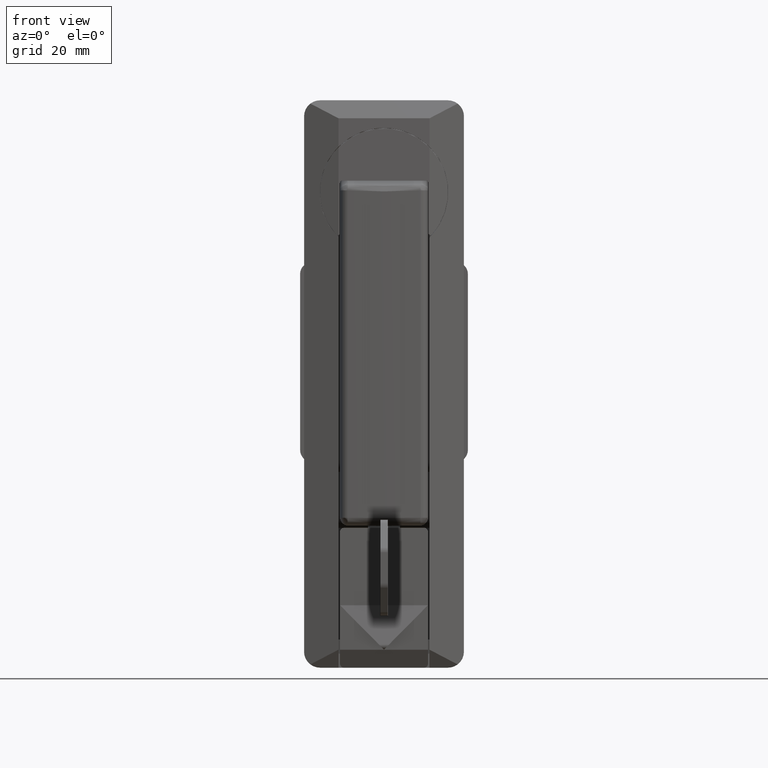
[diagram: clean part render]
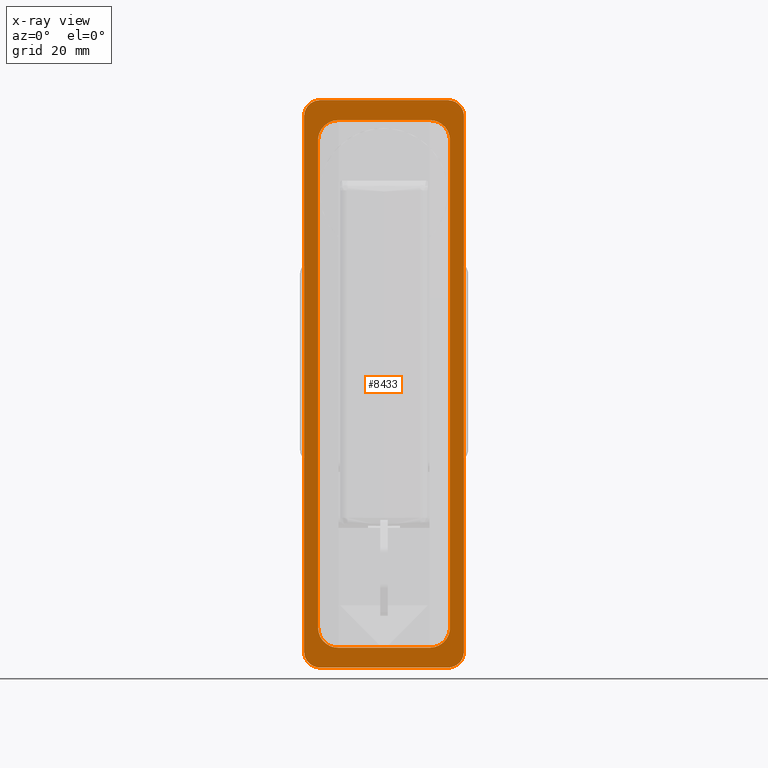
[diagram: x-ray — body ghosted, one internal face saturated and labeled with its STEP entity id]
A machine part, front view, then the same camera in x-ray: the body is ghosted and one INTERNAL B-rep face — a face not visible from any outside direction — is saturated and labeled: STEP entity #8433.
In plain terms, the highlighted face is a freeform B-spline surface patch.
Its self-contained STEP definition (entity closure, byte-faithful):
#6839=CARTESIAN_POINT('',(0.0,16.499970000000001,-109.000330000000010));
#6840=VERTEX_POINT('',#6839);
#6849=CARTESIAN_POINT('',(0.0,11.499969999999999,-114.000330000000010));
#6850=VERTEX_POINT('',#6849);
#6856=CARTESIAN_POINT('',(0.0,16.499970000000001,-109.000330000000010));
#6857=CARTESIAN_POINT('',(0.0,16.500699463817689,-109.654962103415200));
#6858=CARTESIAN_POINT('',(0.0,16.304331631190031,-110.636139651273400));
#6859=CARTESIAN_POINT('',(0.0,15.684067110006140,-111.796069577348310));
#6860=CARTESIAN_POINT('',(0.0,14.928059064070521,-112.717703569332300));
#6861=CARTESIAN_POINT('',(0.0,13.853667398936160,-113.494376092367900));
#6862=CARTESIAN_POINT('',(0.0,12.604424343246130,-113.923822309606610));
#6863=CARTESIAN_POINT('',(0.0,11.827202880747270,-114.000357110822900));
#6864=CARTESIAN_POINT('',(0.0,11.499969999999999,-114.000330000000010));
#6865=B_SPLINE_CURVE_WITH_KNOTS('',3,(#6856,#6857,#6858,#6859,#6860,#6861,#6862,#6863,#6864),.UNSPECIFIED.,.F.,.U.,(4,1,1,1,1,1,4),(0.000000136025099,1.963544904976822,2.945358204367086,3.927089428850185,5.522458763391846,6.872448776485430,7.854178721675453),.UNSPECIFIED.);
#6866=EDGE_CURVE('',#6840,#6850,#6865,.T.);
#6887=CARTESIAN_POINT('',(0.0,-16.499980000000001,-109.000330000000010));
#6888=VERTEX_POINT('',#6887);
#6894=CARTESIAN_POINT('',(0.0,-11.499980000000001,-114.000330000000010));
#6895=VERTEX_POINT('',#6894);
#6896=CARTESIAN_POINT('',(0.0,-11.499980000000001,-114.000330000000010));
#6897=CARTESIAN_POINT('',(0.0,-11.909038563516470,-114.000423911959300));
#6898=CARTESIAN_POINT('',(0.0,-12.727118508188390,-113.899367467805400));
#6899=CARTESIAN_POINT('',(0.0,-13.957735928246411,-113.424902695771910));
#6900=CARTESIAN_POINT('',(0.0,-14.954097409220370,-112.685872514897200));
#6901=CARTESIAN_POINT('',(0.0,-15.658022648366760,-111.827853969736690));
#6902=CARTESIAN_POINT('',(0.0,-16.133213009475551,-110.964603235084000));
#6903=CARTESIAN_POINT('',(0.0,-16.431495627558700,-110.022969785393300));
#6904=CARTESIAN_POINT('',(0.0,-16.500017439778588,-109.327565012206900));
#6905=CARTESIAN_POINT('',(0.0,-16.499980000000001,-109.000330000000010));
#6906=B_SPLINE_CURVE_WITH_KNOTS('',3,(#6896,#6897,#6898,#6899,#6900,#6901,#6902,#6903,#6904,#6905),.UNSPECIFIED.,.F.,.U.,(4,1,1,1,1,1,1,4),(0.000000136022162,1.227188498865411,2.454450713861187,3.927089428848872,4.908819375248607,5.767911413203597,6.872448776485378,7.854178721675496),.UNSPECIFIED.);
#6907=EDGE_CURVE('',#6895,#6888,#6906,.T.);
#6932=CARTESIAN_POINT('',(0.0,-16.499980000000001,12.999969999999999));
#6933=VERTEX_POINT('',#6932);
#6940=CARTESIAN_POINT('',(0.0,-11.499980000000001,17.999970000000001));
#6941=VERTEX_POINT('',#6940);
#6947=CARTESIAN_POINT('',(0.0,-16.499980000000001,12.999969999999999));
#6948=CARTESIAN_POINT('',(0.0,-16.500636210550208,13.654606131228419));
#6949=CARTESIAN_POINT('',(0.0,-16.304352038165678,14.635727372406260));
#6950=CARTESIAN_POINT('',(0.0,-15.606697288935070,15.940833950048811));
#6951=CARTESIAN_POINT('',(0.0,-14.857004754609710,16.768061153649960));
#6952=CARTESIAN_POINT('',(0.0,-13.942771672459520,17.395064097244070));
#6953=CARTESIAN_POINT('',(0.0,-12.890631984585699,17.861584933550461));
#6954=CARTESIAN_POINT('',(0.0,-12.031796282986869,18.000258119771530));
#6955=CARTESIAN_POINT('',(0.0,-11.499980000000001,17.999970000000001));
#6956=B_SPLINE_CURVE_WITH_KNOTS('',3,(#6947,#6948,#6949,#6950,#6951,#6952,#6953,#6954,#6955),.UNSPECIFIED.,.F.,.U.,(4,1,1,1,1,1,4),(0.000000136027049,1.963544904978004,2.945358204368014,4.417936616299081,5.277001531547244,6.258809388342906,7.854178721675471),.UNSPECIFIED.);
#6957=EDGE_CURVE('',#6933,#6941,#6956,.T.);
#6976=CARTESIAN_POINT('',(0.0,11.499969999999999,17.999970000000001));
#6977=VERTEX_POINT('',#6976);
#6984=CARTESIAN_POINT('',(0.0,16.499970000000001,12.999969999999999));
#6985=VERTEX_POINT('',#6984);
#6991=CARTESIAN_POINT('',(0.0,11.499969999999999,17.999970000000001));
#6992=CARTESIAN_POINT('',(0.0,11.990838351051940,18.000119615437050));
#6993=CARTESIAN_POINT('',(0.0,13.054408838090460,17.842257943233221));
#6994=CARTESIAN_POINT('',(0.0,14.315145701326021,17.207905121810839));
#6995=CARTESIAN_POINT('',(0.0,15.167639588456289,16.434544286012319));
#6996=CARTESIAN_POINT('',(0.0,15.748076130208441,15.690901006058660));
#6997=CARTESIAN_POINT('',(0.0,16.316885794908281,14.595001029178480));
#6998=CARTESIAN_POINT('',(0.0,16.500516013147269,13.613647851598589));
#6999=CARTESIAN_POINT('',(0.0,16.499970000000001,12.999969999999999));
#7000=B_SPLINE_CURVE_WITH_KNOTS('',3,(#6991,#6992,#6993,#6994,#6995,#6996,#6997,#6998,#6999),.UNSPECIFIED.,.F.,.U.,(4,1,1,1,1,1,4),(0.000000136026368,1.472646374536270,3.190802702397065,4.172509422660001,4.908819375250036,6.013356738530902,7.854178721675471),.UNSPECIFIED.);
#7001=EDGE_CURVE('',#6977,#6985,#7000,.T.);
#8170=CARTESIAN_POINT('',(0.0,-16.499980000000001,12.999969999999999));
#8171=CARTESIAN_POINT('',(0.0,-16.499980000000001,-109.000330000000010));
#8172=QUASI_UNIFORM_CURVE('',1,(#8170,#8171),.UNSPECIFIED.,.F.,.U.);
#8173=EDGE_CURVE('',#6933,#6888,#8172,.T.);
#8202=CARTESIAN_POINT('',(0.0,16.499970000000001,12.999969999999999));
#8203=CARTESIAN_POINT('',(0.0,16.499970000000001,-109.000330000000010));
#8204=QUASI_UNIFORM_CURVE('',1,(#8202,#8203),.UNSPECIFIED.,.F.,.U.);
#8205=EDGE_CURVE('',#6985,#6840,#8204,.T.);
#8246=CARTESIAN_POINT('',(0.0,11.499969999999999,-114.000330000000010));
#8247=CARTESIAN_POINT('',(0.0,-11.499980000000001,-114.000330000000010));
#8248=QUASI_UNIFORM_CURVE('',1,(#8246,#8247),.UNSPECIFIED.,.F.,.U.);
#8249=EDGE_CURVE('',#6850,#6895,#8248,.T.);
#8262=CARTESIAN_POINT('',(0.0,11.499969999999999,17.999970000000001));
#8263=CARTESIAN_POINT('',(0.0,-11.499980000000001,17.999970000000001));
#8264=QUASI_UNIFORM_CURVE('',1,(#8262,#8263),.UNSPECIFIED.,.F.,.U.);
#8265=EDGE_CURVE('',#6977,#6941,#8264,.T.);
#8284=CARTESIAN_POINT('',(0.0,-16.0,22.999970000000001));
#8285=VERTEX_POINT('',#8284);
#8291=CARTESIAN_POINT('',(0.0,16.0,22.999970000000001));
#8292=VERTEX_POINT('',#8291);
#8293=CARTESIAN_POINT('',(0.0,-16.0,22.999970000000001));
#8294=CARTESIAN_POINT('',(0.0,16.0,22.999970000000001));
#8295=QUASI_UNIFORM_CURVE('',1,(#8293,#8294),.UNSPECIFIED.,.F.,.U.);
#8296=EDGE_CURVE('',#8285,#8292,#8295,.T.);
#8319=CARTESIAN_POINT('',(0.0,16.0,-119.000330000000010));
#8320=VERTEX_POINT('',#8319);
#8326=CARTESIAN_POINT('',(0.0,-16.0,-119.000330000000010));
#8327=VERTEX_POINT('',#8326);
#8328=CARTESIAN_POINT('',(0.0,-16.0,-119.000330000000010));
#8329=CARTESIAN_POINT('',(0.0,16.0,-119.000330000000010));
#8330=QUASI_UNIFORM_CURVE('',1,(#8328,#8329),.UNSPECIFIED.,.F.,.U.);
#8331=EDGE_CURVE('',#8327,#8320,#8330,.T.);
#8350=CARTESIAN_POINT('',(0.0,-21.997999922472239,30.092884202451049));
#8351=CARTESIAN_POINT('',(0.0,-21.997999922472239,-126.093237854543010));
#8352=CARTESIAN_POINT('',(0.0,21.998000995355849,30.092884202451049));
#8353=CARTESIAN_POINT('',(0.0,21.998000995355849,-126.093237854543010));
#8354=B_SPLINE_SURFACE_WITH_KNOTS('',1,1,((#8350,#8352),(#8351,#8353)),.UNSPECIFIED.,.F.,.F.,.U.,(2,2),(2,2),(0.0,156.186122056994090),(0.0,43.996000917828077),.UNSPECIFIED.);
#8355=ORIENTED_EDGE('',*,*,#8331,.T.);
#8356=CARTESIAN_POINT('',(0.0,20.0,-115.000330000000010));
#8357=VERTEX_POINT('',#8356);
#8358=CARTESIAN_POINT('',(0.0,16.0,-119.000330000000010));
#8359=CARTESIAN_POINT('',(0.0,16.458202246612458,-119.000683087724000));
#8360=CARTESIAN_POINT('',(0.0,17.210628193196900,-118.869506591940390));
#8361=CARTESIAN_POINT('',(0.0,18.127877879829050,-118.421755614968700));
#8362=CARTESIAN_POINT('',(0.0,18.879755314675361,-117.835138002764200));
#8363=CARTESIAN_POINT('',(0.0,19.449547961178890,-117.104948929386300));
#8364=CARTESIAN_POINT('',(0.0,19.889306001131828,-116.112852125988000));
#8365=CARTESIAN_POINT('',(0.0,20.000207242510761,-115.425779779318300));
#8366=CARTESIAN_POINT('',(0.0,20.0,-115.000330000000010));
#8367=B_SPLINE_CURVE_WITH_KNOTS('',3,(#8358,#8359,#8360,#8361,#8362,#8363,#8364,#8365,#8366),.UNSPECIFIED.,.F.,.U.,(4,1,1,1,1,1,4),(0.000000279506056,1.374473159491169,2.258108302966527,3.043529038261027,4.221597964785541,5.007039267004215,6.283342977353465),.UNSPECIFIED.);
#8368=EDGE_CURVE('',#8320,#8357,#8367,.T.);
#8369=ORIENTED_EDGE('',*,*,#8368,.T.);
#8370=CARTESIAN_POINT('',(0.0,20.0,18.999970000000001));
#8371=VERTEX_POINT('',#8370);
#8372=CARTESIAN_POINT('',(0.0,20.0,18.999970000000001));
#8373=CARTESIAN_POINT('',(0.0,20.0,-115.000330000000010));
#8374=QUASI_UNIFORM_CURVE('',1,(#8372,#8373),.UNSPECIFIED.,.F.,.U.);
#8375=EDGE_CURVE('',#8371,#8357,#8374,.T.);
#8376=ORIENTED_EDGE('',*,*,#8375,.F.);
#8377=CARTESIAN_POINT('',(0.0,20.0,18.999970000000001));
#8378=CARTESIAN_POINT('',(0.0,20.000576298451129,19.523679937184639));
#8379=CARTESIAN_POINT('',(0.0,19.850045535901689,20.275902385286841));
#8380=CARTESIAN_POINT('',(0.0,19.380920495031528,21.179686763786620));
#8381=CARTESIAN_POINT('',(0.0,18.915658237175538,21.775933791190511));
#8382=CARTESIAN_POINT('',(0.0,18.268287764405279,22.334374524552690));
#8383=CARTESIAN_POINT('',(0.0,17.308736662854951,22.847391715654151));
#8384=CARTESIAN_POINT('',(0.0,16.490938948405919,23.000413438100178));
#8385=CARTESIAN_POINT('',(0.0,16.0,22.999970000000001));
#8386=B_SPLINE_CURVE_WITH_KNOTS('',3,(#8377,#8378,#8379,#8380,#8381,#8382,#8383,#8384,#8385),.UNSPECIFIED.,.F.,.U.,(4,1,1,1,1,1,4),(0.000000279500499,1.570837072125427,2.258108302963290,3.043529038258377,3.828906637542016,4.810689989761302,6.283342977353436),.UNSPECIFIED.);
#8387=EDGE_CURVE('',#8371,#8292,#8386,.T.);
#8388=ORIENTED_EDGE('',*,*,#8387,.T.);
#8389=ORIENTED_EDGE('',*,*,#8296,.F.);
#8390=CARTESIAN_POINT('',(0.0,-20.0,18.999970000000001));
#8391=VERTEX_POINT('',#8390);
#8392=CARTESIAN_POINT('',(0.0,-16.0,22.999970000000001));
#8393=CARTESIAN_POINT('',(0.0,-16.458184192637582,23.000289192943750));
#8394=CARTESIAN_POINT('',(0.0,-17.341583956063470,22.846510190588610));
#8395=CARTESIAN_POINT('',(0.0,-18.357772497772650,22.287201108931399));
#8396=CARTESIAN_POINT('',(0.0,-19.191486338868120,21.493592977531460));
#8397=CARTESIAN_POINT('',(0.0,-19.823063772196459,20.439657670756269));
#8398=CARTESIAN_POINT('',(0.0,-20.000428527236991,19.490902409373611));
#8399=CARTESIAN_POINT('',(0.0,-20.0,18.999970000000001));
#8400=B_SPLINE_CURVE_WITH_KNOTS('',3,(#8392,#8393,#8394,#8395,#8396,#8397,#8398,#8399),.UNSPECIFIED.,.F.,.U.,(4,1,1,1,1,4),(0.000000279505018,1.374473159489937,2.650833670817348,3.436137943763391,4.810689989761260,6.283342977353435),.UNSPECIFIED.);
#8401=EDGE_CURVE('',#8285,#8391,#8400,.T.);
#8402=ORIENTED_EDGE('',*,*,#8401,.T.);
#8403=CARTESIAN_POINT('',(0.0,-20.0,-115.000330000000010));
#8404=VERTEX_POINT('',#8403);
#8405=CARTESIAN_POINT('',(0.0,-20.0,18.999970000000001));
#8406=CARTESIAN_POINT('',(0.0,-20.0,-115.000330000000010));
#8407=QUASI_UNIFORM_CURVE('',1,(#8405,#8406),.UNSPECIFIED.,.F.,.U.);
#8408=EDGE_CURVE('',#8391,#8404,#8407,.T.);
#8409=ORIENTED_EDGE('',*,*,#8408,.T.);
#8410=CARTESIAN_POINT('',(0.0,-20.0,-115.000330000000010));
#8411=CARTESIAN_POINT('',(0.0,-20.000315340376659,-115.458515423623600));
#8412=CARTESIAN_POINT('',(0.0,-19.846553363936220,-116.341904883040000));
#8413=CARTESIAN_POINT('',(0.0,-19.223322814843112,-117.474326132588000));
#8414=CARTESIAN_POINT('',(0.0,-18.288914127856138,-118.364089832620190));
#8415=CARTESIAN_POINT('',(0.0,-17.178130913802448,-118.889368303886700));
#8416=CARTESIAN_POINT('',(0.0,-16.359956888192340,-119.000401931871490));
#8417=CARTESIAN_POINT('',(0.0,-16.0,-119.000330000000010));
#8418=B_SPLINE_CURVE_WITH_KNOTS('',3,(#8410,#8411,#8412,#8413,#8414,#8415,#8416,#8417),.UNSPECIFIED.,.F.,.U.,(4,1,1,1,1,4),(0.000000279506380,1.374473159490620,2.650833670817381,3.828906637542847,5.203416649042644,6.283342977353464),.UNSPECIFIED.);
#8419=EDGE_CURVE('',#8404,#8327,#8418,.T.);
#8420=ORIENTED_EDGE('',*,*,#8419,.T.);
#8421=EDGE_LOOP('',(#8355,#8369,#8376,#8388,#8389,#8402,#8409,#8420));
#8422=FACE_OUTER_BOUND('',#8421,.T.);
#8423=ORIENTED_EDGE('',*,*,#8265,.F.);
#8424=ORIENTED_EDGE('',*,*,#7001,.T.);
#8425=ORIENTED_EDGE('',*,*,#8205,.T.);
#8426=ORIENTED_EDGE('',*,*,#6866,.T.);
#8427=ORIENTED_EDGE('',*,*,#8249,.T.);
#8428=ORIENTED_EDGE('',*,*,#6907,.T.);
#8429=ORIENTED_EDGE('',*,*,#8173,.F.);
#8430=ORIENTED_EDGE('',*,*,#6957,.T.);
#8431=EDGE_LOOP('',(#8423,#8424,#8425,#8426,#8427,#8428,#8429,#8430));
#8432=FACE_BOUND('',#8431,.T.);
#8433=ADVANCED_FACE('',(#8422,#8432),#8354,.T.);